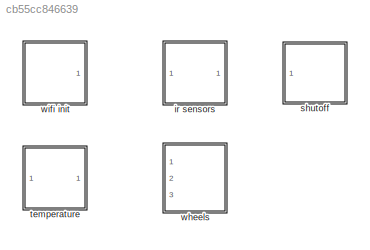
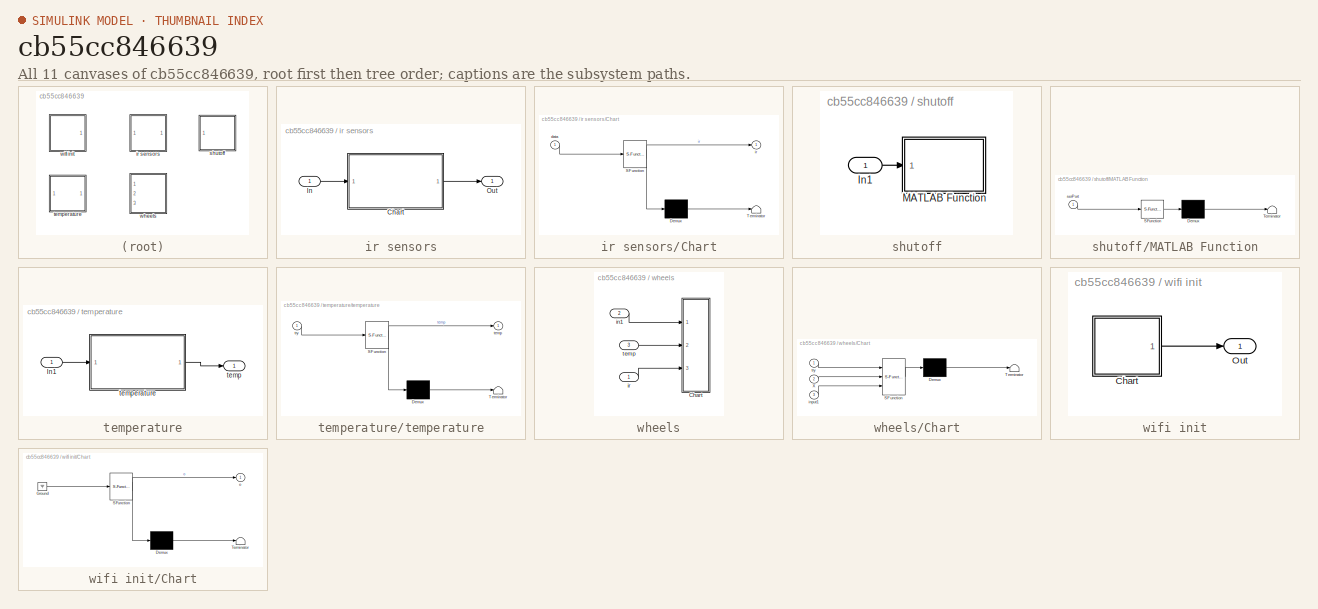
[diagram: thumbnail index - all 11 canvases of the model, root first then tree order]
MODEL slx_cb55cc846639
KIND library
CONFIG AbsTol = auto
CONFIG EnableMultiTasking = off
CONFIG FixedStep = auto
CONFIG MaxStep = auto
CONFIG MinStep = auto
CONFIG RelTol = 1e-3
CONFIG SampleTimeConstraint = Unconstrained
CONFIG Solver = VariableStepAuto
CONFIG SolverName = VariableStepAuto
CONFIG StartTime = 0.0
CONFIG StopTime = 10.0
BLOCK [SubSystem] ir sensors
  Ports = [1, 1]
  RequestExecContextInheritance = off
  Variant = off
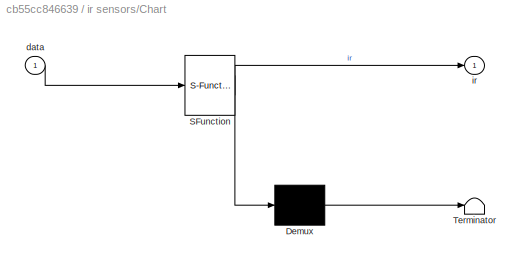
BLOCK [SubSystem] ir sensors/Chart
  ErrorFcn = Stateflow.Translate.translate
  PermitHierarchicalResolution = ExplicitOnly
  Ports = [1, 1]
  RequestExecContextInheritance = off
  SFBlockType = Chart
  TreatAsAtomicUnit = on
  Variant = off
BLOCK [Demux] ir sensors/Chart/ Demux 
  Outputs = 1
  Ports = [1, 1]
BLOCK [S-Function] ir sensors/Chart/ SFunction 
  EnableBusSupport = off
  FunctionName = sf_sfun
  PortCounts = [1 2]
  Ports = [1, 2]
  SFcnIsStateOwnerBlock = off
  SFunctionDeploymentMode = off
  Tag = Stateflow S-Function DigitalControlLib2 2
BLOCK [Terminator] ir sensors/Chart/ Terminator 
BLOCK [Inport] ir sensors/Chart/data
  IconDisplay = Port number
BLOCK [Outport] ir sensors/Chart/ir
  IconDisplay = Port number
BLOCK [Inport] ir sensors/In
  IconDisplay = Port number
BLOCK [Outport] ir sensors/Out
  IconDisplay = Port number
BLOCK [SubSystem] shutoff
  Ports = [1]
  RequestExecContextInheritance = off
  Variant = off
BLOCK [Inport] shutoff/In1
  IconDisplay = Port number
BLOCK [SubSystem] shutoff/MATLAB Function
  ErrorFcn = Stateflow.Translate.translate
  PermitHierarchicalResolution = ExplicitOnly
  Ports = [1]
  RequestExecContextInheritance = off
  SFBlockType = MATLAB Function
  TreatAsAtomicUnit = on
  Variant = off
BLOCK [Demux] shutoff/MATLAB Function/ Demux 
  Outputs = 1
  Ports = [1, 1]
BLOCK [S-Function] shutoff/MATLAB Function/ SFunction 
  EnableBusSupport = off
  FunctionName = sf_sfun
  PortCounts = [1 1]
  Ports = [1, 1]
  SFcnIsStateOwnerBlock = off
  SFunctionDeploymentMode = off
  Tag = Stateflow S-Function DigitalControlLib2 4
BLOCK [Terminator] shutoff/MATLAB Function/ Terminator 
BLOCK [Inport] shutoff/MATLAB Function/serPort
  IconDisplay = Port number
BLOCK [SubSystem] temperature
  Ports = [1, 1]
  RequestExecContextInheritance = off
  Variant = off
BLOCK [Inport] temperature/In1
  IconDisplay = Port number
BLOCK [Outport] temperature/temp
  IconDisplay = Port number
BLOCK [SubSystem] temperature/temperature
  ErrorFcn = Stateflow.Translate.translate
  PermitHierarchicalResolution = ExplicitOnly
  Ports = [1, 1]
  RequestExecContextInheritance = off
  SFBlockType = Chart
  TreatAsAtomicUnit = on
  Variant = off
BLOCK [Demux] temperature/temperature/ Demux 
  Outputs = 1
  Ports = [1, 1]
BLOCK [S-Function] temperature/temperature/ SFunction 
  EnableBusSupport = off
  FunctionName = sf_sfun
  PortCounts = [1 2]
  Ports = [1, 2]
  SFcnIsStateOwnerBlock = off
  SFunctionDeploymentMode = off
  Tag = Stateflow S-Function DigitalControlLib2 1
BLOCK [Terminator] temperature/temperature/ Terminator 
BLOCK [Outport] temperature/temperature/temp
  IconDisplay = Port number
BLOCK [Inport] temperature/temperature/try
  IconDisplay = Port number
BLOCK [SubSystem] wheels
  Ports = [3]
  RequestExecContextInheritance = off
  Variant = off
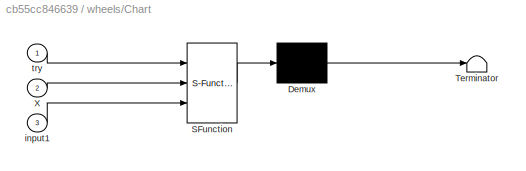
BLOCK [SubSystem] wheels/Chart
  ErrorFcn = Stateflow.Translate.translate
  PermitHierarchicalResolution = ExplicitOnly
  Ports = [3]
  RequestExecContextInheritance = off
  SFBlockType = Chart
  TreatAsAtomicUnit = on
  Variant = off
BLOCK [Demux] wheels/Chart/ Demux 
  Outputs = 1
  Ports = [1, 1]
BLOCK [S-Function] wheels/Chart/ SFunction 
  EnableBusSupport = on
  FunctionName = sf_sfun
  PortCounts = [3 1]
  Ports = [3, 1]
  SFcnIsStateOwnerBlock = off
  SFunctionDeploymentMode = off
  Tag = Stateflow S-Function DigitalControlLib2 11
BLOCK [Terminator] wheels/Chart/ Terminator 
BLOCK [Inport] wheels/Chart/X
  IconDisplay = Port number
  Port = 2
BLOCK [Inport] wheels/Chart/input1
  IconDisplay = Port number
  Port = 3
BLOCK [Inport] wheels/Chart/try
  IconDisplay = Port number
BLOCK [Inport] wheels/in1
  IconDisplay = Port number
  Port = 2
BLOCK [Inport] wheels/ir
  IconDisplay = Port number
BLOCK [Inport] wheels/temp
  IconDisplay = Port number
  Port = 3
BLOCK [SubSystem] wifi init
  Ports = [0, 1]
  RequestExecContextInheritance = off
  Variant = off
BLOCK [SubSystem] wifi init/Chart
  ErrorFcn = Stateflow.Translate.translate
  PermitHierarchicalResolution = ExplicitOnly
  Ports = [0, 1]
  RequestExecContextInheritance = off
  SFBlockType = Chart
  TreatAsAtomicUnit = on
  Variant = off
BLOCK [Demux] wifi init/Chart/ Demux 
  Outputs = 1
  Ports = [1, 1]
BLOCK [Ground] wifi init/Chart/ Ground 
BLOCK [S-Function] wifi init/Chart/ SFunction 
  EnableBusSupport = off
  FunctionName = sf_sfun
  PortCounts = [1 2]
  Ports = [1, 2]
  SFcnIsStateOwnerBlock = off
  SFunctionDeploymentMode = off
  Tag = Stateflow S-Function DigitalControlLib2 3
BLOCK [Terminator] wifi init/Chart/ Terminator 
BLOCK [Outport] wifi init/Chart/o
  IconDisplay = Port number
BLOCK [Outport] wifi init/Out
  IconDisplay = Port number
LINE ir sensors/Chart:1 -> ir sensors/Out:1
LINE ir sensors/In:1 -> ir sensors/Chart:1
LINE shutoff/In1:1 -> shutoff/MATLAB Function:1
LINE temperature/In1:1 -> temperature/temperature:1
LINE temperature/temperature:1 -> temperature/temp:1
LINE wheels/in1:1 -> wheels/Chart:1
LINE wheels/ir:1 -> wheels/Chart:3
LINE wheels/temp:1 -> wheels/Chart:2
LINE wifi init/Chart:1 -> wifi init/Out:1
CHART temperature/temperature states=2 transitions=1
  STATE_LABEL 'y=T'
  STATE_LABEL "SCRIPT:\nfunction y=T\npersistent so\ny=1;\ncoder.extrinsic('evalin');\ncoder.extrinsic('get');\n\nso = evalin('base','objWs');\n\ntemp=0;  \ncoder.extrinsic('TemperatureRoomba');\ntemp=TemperatureRoomba(so);\n\ny=temp;\n"
  STATE_LABEL 'temp\nen,du:\ntemp=T;'
CHART ir sensors/Chart states=2 transitions=1
  STATE_LABEL 'y = irv'
  STATE_LABEL "SCRIPT:\nfunction y = irv\ny = [0,0,0,0,0,0];\npersistent obj\ncoder.extrinsic('evalin')\ncoder.extrinsic('get')\ncoder.extrinsic('RangeStateRoomba')\nif isempty(obj)\n    obj = evalin('base','objWs')\nend\ncoder.extrinsic('RangeStateRoomba')\ny = RangeStateRoomba(obj);\n"
  STATE_LABEL 'RANGE\nen,du:\nir=irv;'
CHART wifi init/Chart states=2 transitions=1
  STATE_LABEL 'tcpInit'
  STATE_LABEL "SCRIPT:\nfunction tcpInit\ncoder.extrinsic('RoombaWifiInit');\ncoder.extrinsic('assignin');\npersistent obj\nif isempty(obj)\nobj = RoombaWifiInit('10.0.0.1','full');\nassignin('base','objWs', obj);\nend"
  STATE_LABEL 'INIT\nen,du:\ntcpInit;\no=1;\n'
CHART shutoff/MATLAB Function states=1 transitions=1
  STATE_LABEL 'eML_blk_kernel()'
  STATE_LABEL "SCRIPT:\nfunction PowerOffRoomba(serPort)\n% PowerOffRoomba(serPort)\n% Power down robot.  \n% serPort is a serial port object created by RoombaInit\n% Note that the physical power button does not work, and power saving and charging will not\n% occur once the robot is initialized with RoombaInit.  There is a real\n% risk of deeply discharging the Roomba's battery causing permanent\n% damage.  Always use t...<+146ch>"
CHART wheels/Chart states=12 transitions=18
  STATE_LABEL 'on1'
  STATE_LABEL 'off\nen,du:\nwheel(0,0);\n'
  STATE_LABEL 'on'
  STATE_LABEL 'Reverse\nentry:\nwheel(-.1,-0.1);\n'
  STATE_LABEL 'Straiforward\nentry,du:\nwheel(0.05,0.05);\n'
  STATE_LABEL 'Rightturn3\nentry,du:\n wheel(-0.2,0.2);\n'
  STATE_LABEL 'leftturn3\nentry,du:\n wheel(0.2,-0.2);\n'
  STATE_LABEL 'Leftturn3\nentry,du:\nwheel(0.3,-0.2);\n'
  STATE_LABEL 'Rightturn2\nentry,du:\nwheel(-0.2,0.3);\n'
  STATE_LABEL 'Leftturn2\nentry,du:\n wheel(0.2,-0.1);'
  STATE_LABEL 'Rightturn1\nentry,du:\nwheel(-0.1,.2);\n'
  STATE_LABEL 'after(1,sec)'
  STATE_LABEL '[input1(1)>0]'
  STATE_LABEL '[input1(1)<1]'
  STATE_LABEL '[input1(2)>0]'
  STATE_LABEL '[input1(2)<1]'
  STATE_LABEL '[input1(3)>0]'
  STATE_LABEL '[input1(3)<1]'
  STATE_LABEL '[input1(4)>0]'
  STATE_LABEL '[input1(4)<1]'
  STATE_LABEL '[input1(5)>0]'
  STATE_LABEL '[input1(5)<1]'
  STATE_LABEL '[input1(6)>0]'
  STATE_LABEL '[input1(6)<1]'
  STATE_LABEL '[X<80]'
  STATE_LABEL '[X>=80]'
  STATE_LABEL 'off\nen,du:\nwheel(0,0);\n'
  STATE_LABEL 'on'
  STATE_LABEL 'Reverse\nentry:\nwheel(-.1,-0.1);\n'
  STATE_LABEL 'Straiforward\nentry,du:\nwheel(0.05,0.05);\n'
  STATE_LABEL 'Rightturn3\nentry,du:\n wheel(-0.2,0.2);\n'
  STATE_LABEL 'leftturn3\nentry,du:\n wheel(0.2,-0.2);\n'
  STATE_LABEL 'Leftturn3\nentry,du:\nwheel(0.3,-0.2);\n'
  STATE_LABEL 'Rightturn2\nentry,du:\nwheel(-0.2,0.3);\n'
  STATE_LABEL 'Leftturn2\nentry,du:\n wheel(0.2,-0.1);'
  STATE_LABEL 'Rightturn1\nentry,du:\nwheel(-0.1,.2);\n'
  STATE_LABEL 'after(1,sec)'
  STATE_LABEL '[input1(1)>0]'
  STATE_LABEL '[input1(1)<1]'
  STATE_LABEL '[input1(2)>0]'
